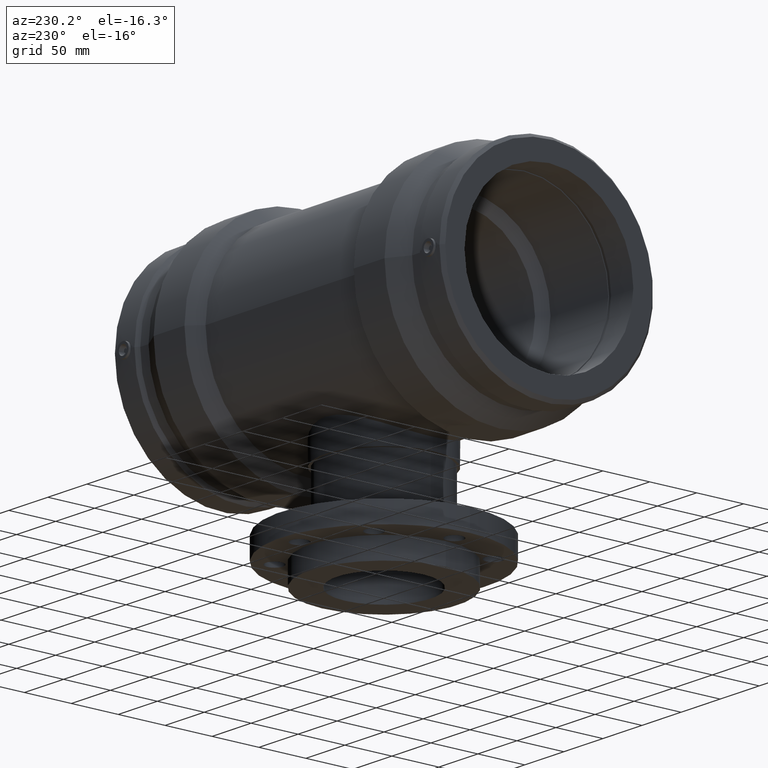
[diagram: clean part render]
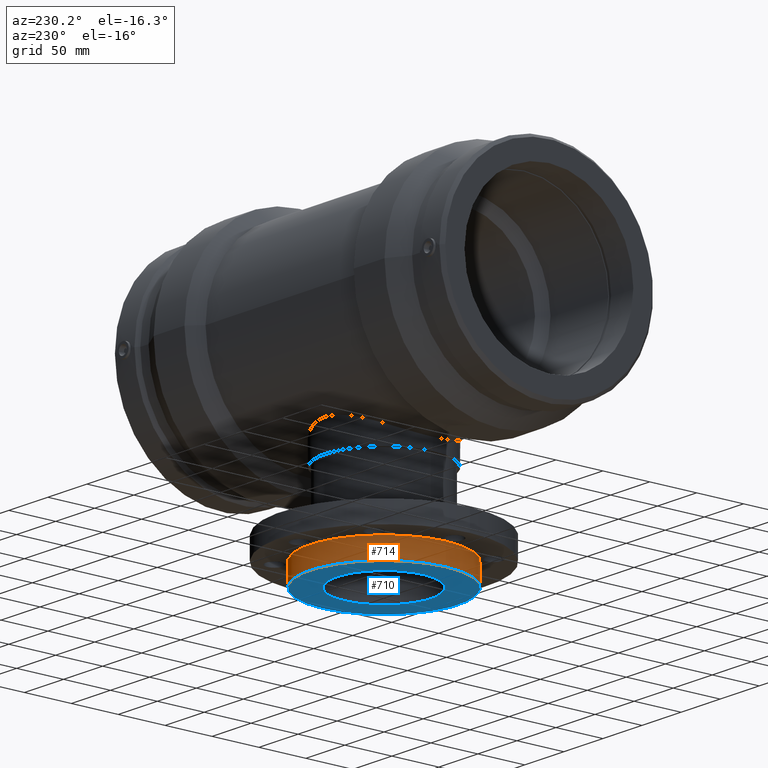
[diagram: same view with the hole feature highlighted: cylindrical wall and planar end face, labeled with their STEP entity ids]
A machine part, auxiliary view. The highlighted faces form one hole feature of diameter 158 mm: the cylindrical wall (entity #714, orange) and its adjacent planar end face (entity #710, blue) — they share a circular edge in the B-rep.
Wall:
#58=FACE_BOUND('',#305,.T.);
#139=CIRCLE('',#790,79.);
#143=CIRCLE('',#798,79.);
#196=CYLINDRICAL_SURFACE('',#797,79.);
#230=FACE_OUTER_BOUND('',#304,.T.);
#304=EDGE_LOOP('',(#590));
#305=EDGE_LOOP('',(#591));
#440=VERTEX_POINT('',#1520);
#444=VERTEX_POINT('',#1532);
#510=EDGE_CURVE('',#440,#440,#139,.T.);
#514=EDGE_CURVE('',#444,#444,#143,.T.);
#590=ORIENTED_EDGE('',*,*,#514,.F.);
#591=ORIENTED_EDGE('',*,*,#510,.F.);
#714=ADVANCED_FACE('',(#230,#58),#196,.T.);
#790=AXIS2_PLACEMENT_3D('',#1521,#945,#946);
#797=AXIS2_PLACEMENT_3D('',#1531,#959,#960);
#798=AXIS2_PLACEMENT_3D('',#1533,#961,#962);
#945=DIRECTION('center_axis',(-1.22464679914735E-16,0.,-1.));
#946=DIRECTION('ref_axis',(1.,0.,-1.22464679914735E-16));
#959=DIRECTION('center_axis',(-1.22464679914735E-16,0.,-1.));
#960=DIRECTION('ref_axis',(-1.,0.,0.));
#961=DIRECTION('center_axis',(1.22464679914735E-16,0.,1.));
#962=DIRECTION('ref_axis',(-1.,0.,0.));
#1520=CARTESIAN_POINT('',(-79.,0.,-225.));
#1521=CARTESIAN_POINT('Origin',(-2.75545529808154E-14,0.,-225.));
#1531=CARTESIAN_POINT('Origin',(-2.62074415017534E-14,0.,-214.));
#1532=CARTESIAN_POINT('',(-79.,0.,-203.));
#1533=CARTESIAN_POINT('Origin',(-2.48603300226913E-14,0.,-203.));
End face:
#30=PLANE('',#789);
#54=FACE_BOUND('',#297,.T.);
#137=CIRCLE('',#786,50.);
#139=CIRCLE('',#790,79.);
#226=FACE_OUTER_BOUND('',#296,.T.);
#296=EDGE_LOOP('',(#582));
#297=EDGE_LOOP('',(#583));
#437=VERTEX_POINT('',#1447);
#440=VERTEX_POINT('',#1520);
#507=EDGE_CURVE('',#437,#437,#137,.T.);
#510=EDGE_CURVE('',#440,#440,#139,.T.);
#582=ORIENTED_EDGE('',*,*,#510,.T.);
#583=ORIENTED_EDGE('',*,*,#507,.F.);
#710=ADVANCED_FACE('',(#226,#54),#30,.T.);
#786=AXIS2_PLACEMENT_3D('',#1448,#937,#938);
#789=AXIS2_PLACEMENT_3D('',#1519,#943,#944);
#790=AXIS2_PLACEMENT_3D('',#1521,#945,#946);
#937=DIRECTION('center_axis',(-1.22464679914735E-16,0.,-1.));
#938=DIRECTION('ref_axis',(1.,0.,-1.22464679914735E-16));
#943=DIRECTION('center_axis',(-1.22464679914735E-16,0.,-1.));
#944=DIRECTION('ref_axis',(-1.,0.,0.));
#945=DIRECTION('center_axis',(-1.22464679914735E-16,0.,-1.));
#946=DIRECTION('ref_axis',(1.,0.,-1.22464679914735E-16));
#1447=CARTESIAN_POINT('',(-50.,0.,-225.));
#1448=CARTESIAN_POINT('Origin',(-2.75545529808154E-14,0.,-225.));
#1519=CARTESIAN_POINT('Origin',(-50.,0.,-225.));
#1520=CARTESIAN_POINT('',(-79.,0.,-225.));
#1521=CARTESIAN_POINT('Origin',(-2.75545529808154E-14,0.,-225.));